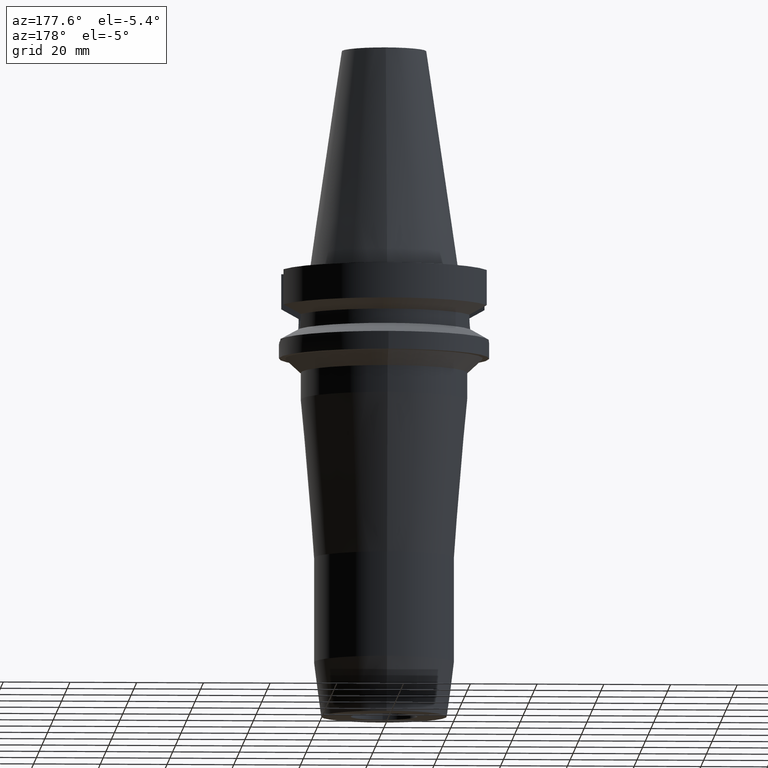
[diagram: clean part render]
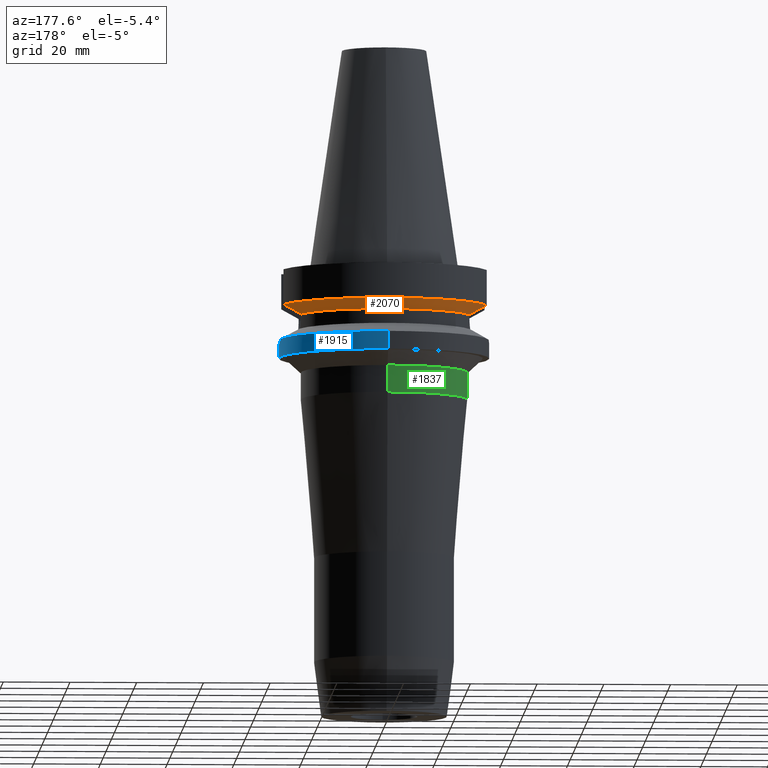
[diagram: same view with three faces highlighted in distinct colors, each labeled with its STEP entity id]
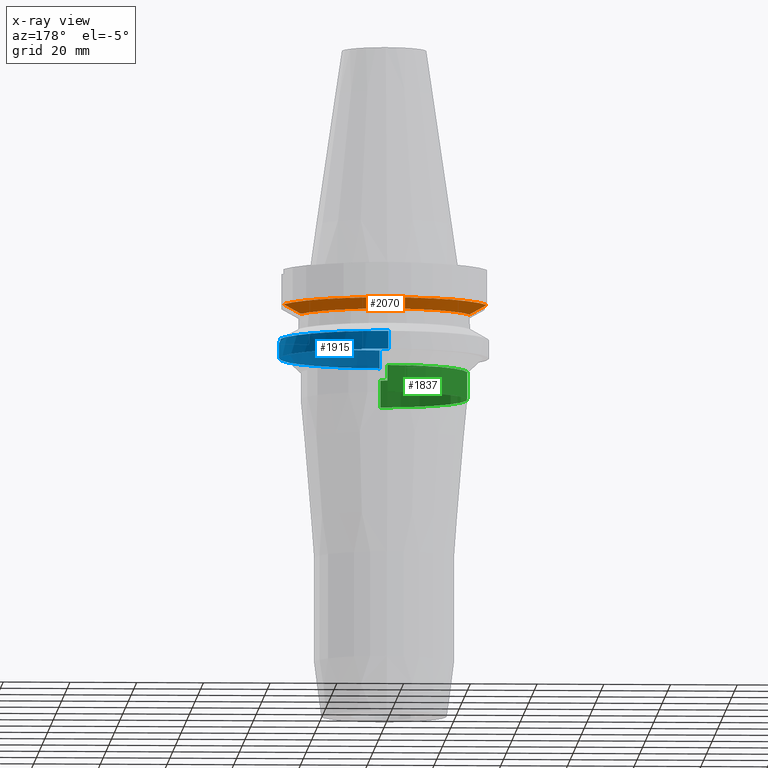
[diagram: x-ray of the same camera — body ghosted, the three highlighted faces saturated]
A machine part, auxiliary view with three faces highlighted in distinct colors.
The next image is the same camera in x-ray (body ghosted, the three faces saturated) — at least one of them is partly hidden behind the body in this view.
Their STEP definitions:

[orange] entity #2070 — the highlighted conical surface has half-angle 60 deg.
#830=CARTESIAN_POINT('',(-2.524772216377E1,8.050001586402E0,-1.445224487710E1));
#831=CARTESIAN_POINT('',(-2.582727361574E1,8.050001586402E0,-1.413345268070E1));
#832=CARTESIAN_POINT('',(-2.698547393780E1,8.049999812150E0,-1.349419203957E1));
#833=CARTESIAN_POINT('',(-2.872100161893E1,8.049998277874E0,-1.253209181535E1));
#834=CARTESIAN_POINT('',(-2.987642831136E1,8.050004143528E0,-1.188786874918E1));
#835=CARTESIAN_POINT('',(-3.045402162752E1,8.050004143528E0,-1.156546832954E1));
#840=CARTESIAN_POINT('',(0.E0,0.E0,-1.445225699861E1));
#841=DIRECTION('',(0.E0,0.E0,-1.E0));
#842=DIRECTION('',(-9.527442516822E-1,3.037735849057E-1,0.E0));
#843=AXIS2_PLACEMENT_3D('',#840,#841,#842);
#848=CARTESIAN_POINT('',(0.E0,0.E0,-1.445225699861E1));
#849=DIRECTION('',(0.E0,0.E0,-1.E0));
#850=DIRECTION('',(0.E0,1.E0,0.E0));
#851=AXIS2_PLACEMENT_3D('',#848,#849,#850);
#856=CARTESIAN_POINT('',(0.E0,0.E0,-1.156550565267E1));
#857=DIRECTION('',(0.E0,0.E0,1.E0));
#858=DIRECTION('',(9.667943721520E-1,2.555555555555E-1,0.E0));
#859=AXIS2_PLACEMENT_3D('',#856,#857,#858);
#864=CARTESIAN_POINT('',(0.E0,0.E0,-1.156550565267E1));
#865=DIRECTION('',(0.E0,0.E0,1.E0));
#866=DIRECTION('',(0.E0,1.E0,0.E0));
#867=AXIS2_PLACEMENT_3D('',#864,#865,#866);
#879=CARTESIAN_POINT('',(3.045402291367E1,8.049999277856E0,-1.156551215687E1));
#880=CARTESIAN_POINT('',(2.987645774309E1,8.049999277856E0,-1.188789690709E1));
#881=CARTESIAN_POINT('',(2.872091200474E1,8.049999725845E0,-1.253193852311E1));
#882=CARTESIAN_POINT('',(2.698538663710E1,8.050002042758E0,-1.349404339200E1));
#883=CARTESIAN_POINT('',(2.582730530107E1,8.049995416335E0,-1.413348340593E1));
#884=CARTESIAN_POINT('',(2.524772413104E1,8.049995416335E0,-1.445229202379E1));
#1301=CARTESIAN_POINT('',(-2.524772216377E1,8.050001586402E0,
-1.445224487710E1));
#1302=VERTEX_POINT('',#1301);
#1303=CARTESIAN_POINT('',(2.524772413104E1,8.049995416335E0,-1.445229202379E1));
#1304=VERTEX_POINT('',#1303);
#1305=CARTESIAN_POINT('',(0.E0,2.65E1,-1.445225699861E1));
#1306=VERTEX_POINT('',#1305);
#1333=VERTEX_POINT('',#835);
#1338=VERTEX_POINT('',#879);
#1339=CARTESIAN_POINT('',(0.E0,3.15E1,-1.156550565267E1));
#1340=VERTEX_POINT('',#1339);
#2054=CARTESIAN_POINT('',(0.E0,0.E0,-1.300888132564E1));
#2055=DIRECTION('',(0.E0,0.E0,1.E0));
#2056=DIRECTION('',(0.E0,1.E0,0.E0));
#2057=AXIS2_PLACEMENT_3D('',#2054,#2055,#2056);
#2058=CONICAL_SURFACE('',#2057,2.9E1,6.E1);
#2059=ORIENTED_EDGE('',*,*,#2042,.F.);
#2060=ORIENTED_EDGE('',*,*,#2031,.T.);
#2061=ORIENTED_EDGE('',*,*,#2029,.T.);
#2063=ORIENTED_EDGE('',*,*,#2062,.F.);
#2065=ORIENTED_EDGE('',*,*,#2064,.T.);
#2067=ORIENTED_EDGE('',*,*,#2066,.T.);
#2068=EDGE_LOOP('',(#2059,#2060,#2061,#2063,#2065,#2067));
#2069=FACE_OUTER_BOUND('',#2068,.F.);
#836=B_SPLINE_CURVE_WITH_KNOTS('',3,(#830,#831,#832,#833,#834,#835),
.UNSPECIFIED.,.F.,.F.,(4,1,1,4),(0.E0,3.333333333333E-1,6.666666666667E-1,1.E0),
.UNSPECIFIED.);
#844=CIRCLE('',#843,2.65E1);
#852=CIRCLE('',#851,2.65E1);
#860=CIRCLE('',#859,3.15E1);
#868=CIRCLE('',#867,3.15E1);
#885=B_SPLINE_CURVE_WITH_KNOTS('',3,(#879,#880,#881,#882,#883,#884),
.UNSPECIFIED.,.F.,.F.,(4,1,1,4),(0.E0,3.333333333333E-1,6.666666666667E-1,1.E0),
.UNSPECIFIED.);
#2029=EDGE_CURVE('',#1306,#1304,#852,.T.);
#2031=EDGE_CURVE('',#1302,#1306,#844,.T.);
#2042=EDGE_CURVE('',#1302,#1333,#836,.T.);
#2062=EDGE_CURVE('',#1338,#1304,#885,.T.);
#2064=EDGE_CURVE('',#1338,#1340,#860,.T.);
#2066=EDGE_CURVE('',#1340,#1333,#868,.T.);
#2070=ADVANCED_FACE('',(#2069),#2058,.T.);

[blue] entity #1915 — the highlighted cylindrical surface (partial cylindrical patch) has radius 31.5 mm, axis along (0, 0, -1).
#582=CARTESIAN_POINT('',(0.E0,0.E0,-2.7E1));
#583=DIRECTION('',(0.E0,0.E0,1.E0));
#584=DIRECTION('',(0.E0,-1.E0,0.E0));
#585=AXIS2_PLACEMENT_3D('',#582,#583,#584);
#614=CARTESIAN_POINT('',(3.117899877609E1,-4.485536235554E0,-2.163449434733E1));
#615=CARTESIAN_POINT('',(3.124367094671E1,-4.035999452748E0,-2.193614970430E1));
#616=CARTESIAN_POINT('',(3.135871088703E1,-3.100656116117E0,-2.243541034671E1));
#617=CARTESIAN_POINT('',(3.147359468493E1,-1.571407466423E0,-2.289766634016E1));
#618=CARTESIAN_POINT('',(3.15E1,-5.303523347555E-1,-2.3E1));
#619=CARTESIAN_POINT('',(3.15E1,0.E0,-2.3E1));
#624=CARTESIAN_POINT('',(3.15E1,0.E0,-2.3E1));
#625=CARTESIAN_POINT('',(3.15E1,5.303306473162E-1,-2.3E1));
#626=CARTESIAN_POINT('',(3.147359709017E1,1.571357245402E0,-2.289767510010E1));
#627=CARTESIAN_POINT('',(3.135871433605E1,3.100626004466E0,-2.243542509817E1));
#628=CARTESIAN_POINT('',(3.124367264891E1,4.035987620710E0,-2.193615764402E1));
#629=CARTESIAN_POINT('',(3.117899877609E1,4.485536235554E0,-2.163449434733E1));
#634=DIRECTION('',(0.E0,1.099151708819E-13,-1.E0));
#635=VECTOR('',#634,5.365505652669E0);
#636=CARTESIAN_POINT('',(0.E0,3.15E1,-2.163449434733E1));
#637=LINE('',#636,#635);
#693=CARTESIAN_POINT('',(0.E0,0.E0,-2.163449434733E1));
#694=DIRECTION('',(0.E0,0.E0,-1.E0));
#695=DIRECTION('',(9.898094849553E-1,-1.423979757319E-1,0.E0));
#696=AXIS2_PLACEMENT_3D('',#693,#694,#695);
#735=DIRECTION('',(0.E0,-1.099151708819E-13,-1.E0));
#736=VECTOR('',#735,5.365505652669E0);
#737=CARTESIAN_POINT('',(0.E0,-3.15E1,-2.163449434733E1));
#738=LINE('',#737,#736);
#762=CARTESIAN_POINT('',(0.E0,0.E0,-2.163449434733E1));
#763=DIRECTION('',(0.E0,0.E0,-1.E0));
#764=DIRECTION('',(0.E0,1.E0,0.E0));
#765=AXIS2_PLACEMENT_3D('',#762,#763,#764);
#1256=CARTESIAN_POINT('',(0.E0,-3.15E1,-2.7E1));
#1257=CARTESIAN_POINT('',(0.E0,3.15E1,-2.7E1));
#1258=VERTEX_POINT('',#1256);
#1259=VERTEX_POINT('',#1257);
#1260=VERTEX_POINT('',#624);
#1261=VERTEX_POINT('',#629);
#1262=VERTEX_POINT('',#614);
#1263=CARTESIAN_POINT('',(0.E0,3.15E1,-2.163449434733E1));
#1264=VERTEX_POINT('',#1263);
#1265=CARTESIAN_POINT('',(0.E0,-3.15E1,-2.163449434733E1));
#1266=VERTEX_POINT('',#1265);
#1895=CARTESIAN_POINT('',(0.E0,0.E0,7.5405E1));
#1896=DIRECTION('',(0.E0,0.E0,-1.E0));
#1897=DIRECTION('',(0.E0,-1.E0,0.E0));
#1898=AXIS2_PLACEMENT_3D('',#1895,#1896,#1897);
#1899=CYLINDRICAL_SURFACE('',#1898,3.15E1);
#1901=ORIENTED_EDGE('',*,*,#1900,.T.);
#1903=ORIENTED_EDGE('',*,*,#1902,.T.);
#1905=ORIENTED_EDGE('',*,*,#1904,.F.);
#1907=ORIENTED_EDGE('',*,*,#1906,.T.);
#1908=ORIENTED_EDGE('',*,*,#1884,.F.);
#1910=ORIENTED_EDGE('',*,*,#1909,.F.);
#1912=ORIENTED_EDGE('',*,*,#1911,.F.);
#1913=EDGE_LOOP('',(#1901,#1903,#1905,#1907,#1908,#1910,#1912));
#1914=FACE_OUTER_BOUND('',#1913,.F.);
#586=CIRCLE('',#585,3.15E1);
#620=B_SPLINE_CURVE_WITH_KNOTS('',3,(#614,#615,#616,#617,#618,#619),
.UNSPECIFIED.,.F.,.F.,(4,1,1,4),(0.E0,3.333333333333E-1,6.666666666667E-1,1.E0),
.UNSPECIFIED.);
#630=B_SPLINE_CURVE_WITH_KNOTS('',3,(#624,#625,#626,#627,#628,#629),
.UNSPECIFIED.,.F.,.F.,(4,1,1,4),(0.E0,3.333333333333E-1,6.666666666667E-1,1.E0),
.UNSPECIFIED.);
#697=CIRCLE('',#696,3.15E1);
#766=CIRCLE('',#765,3.15E1);
#1884=EDGE_CURVE('',#1258,#1259,#586,.T.);
#1900=EDGE_CURVE('',#1262,#1260,#620,.T.);
#1902=EDGE_CURVE('',#1260,#1261,#630,.T.);
#1904=EDGE_CURVE('',#1264,#1261,#766,.T.);
#1906=EDGE_CURVE('',#1264,#1259,#637,.T.);
#1909=EDGE_CURVE('',#1266,#1258,#738,.T.);
#1911=EDGE_CURVE('',#1262,#1266,#697,.T.);
#1915=ADVANCED_FACE('',(#1914),#1899,.T.);

[green] entity #1837 — the highlighted cylindrical surface (partial cylindrical patch) has radius 25 mm, axis along (0, 0, -1).
#515=CARTESIAN_POINT('',(0.E0,0.E0,-3.936527044360E1));
#516=DIRECTION('',(0.E0,0.E0,1.E0));
#517=DIRECTION('',(0.E0,1.E0,0.E0));
#518=AXIS2_PLACEMENT_3D('',#515,#516,#517);
#538=DIRECTION('',(0.E0,0.E0,-1.E0));
#539=VECTOR('',#538,8.065270443600E0);
#540=CARTESIAN_POINT('',(0.E0,-2.5E1,-3.13E1));
#541=LINE('',#540,#539);
#545=DIRECTION('',(0.E0,0.E0,-1.E0));
#546=VECTOR('',#545,8.065270443600E0);
#547=CARTESIAN_POINT('',(0.E0,2.5E1,-3.13E1));
#548=LINE('',#547,#546);
#574=CARTESIAN_POINT('',(0.E0,0.E0,-3.13E1));
#575=DIRECTION('',(0.E0,0.E0,-1.E0));
#576=DIRECTION('',(0.E0,-1.E0,0.E0));
#577=AXIS2_PLACEMENT_3D('',#574,#575,#576);
#1244=CARTESIAN_POINT('',(0.E0,2.5E1,-3.936527044360E1));
#1245=VERTEX_POINT('',#1244);
#1246=CARTESIAN_POINT('',(0.E0,-2.5E1,-3.936527044360E1));
#1247=VERTEX_POINT('',#1246);
#1248=CARTESIAN_POINT('',(0.E0,2.5E1,-3.13E1));
#1249=VERTEX_POINT('',#1248);
#1250=CARTESIAN_POINT('',(0.E0,-2.5E1,-3.13E1));
#1251=VERTEX_POINT('',#1250);
#1823=CARTESIAN_POINT('',(0.E0,0.E0,7.5405E1));
#1824=DIRECTION('',(0.E0,0.E0,-1.E0));
#1825=DIRECTION('',(0.E0,-1.E0,0.E0));
#1826=AXIS2_PLACEMENT_3D('',#1823,#1824,#1825);
#1827=CYLINDRICAL_SURFACE('',#1826,2.5E1);
#1829=ORIENTED_EDGE('',*,*,#1828,.F.);
#1831=ORIENTED_EDGE('',*,*,#1830,.F.);
#1833=ORIENTED_EDGE('',*,*,#1832,.T.);
#1834=ORIENTED_EDGE('',*,*,#1816,.F.);
#1835=EDGE_LOOP('',(#1829,#1831,#1833,#1834));
#1836=FACE_OUTER_BOUND('',#1835,.F.);
#519=CIRCLE('',#518,2.5E1);
#578=CIRCLE('',#577,2.5E1);
#1816=EDGE_CURVE('',#1245,#1247,#519,.T.);
#1828=EDGE_CURVE('',#1249,#1245,#548,.T.);
#1830=EDGE_CURVE('',#1251,#1249,#578,.T.);
#1832=EDGE_CURVE('',#1251,#1247,#541,.T.);
#1837=ADVANCED_FACE('',(#1836),#1827,.T.);